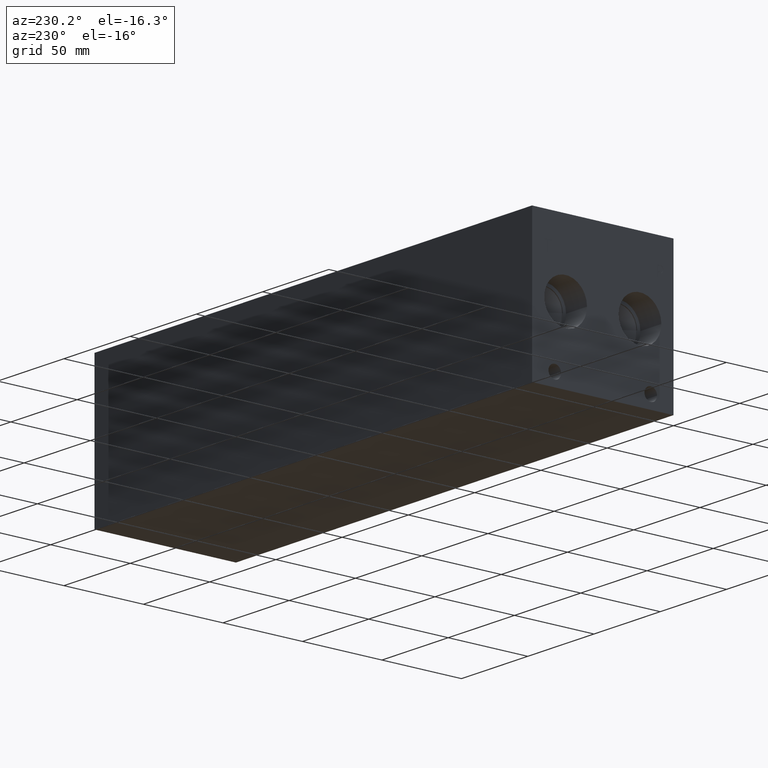
[diagram: clean part render]
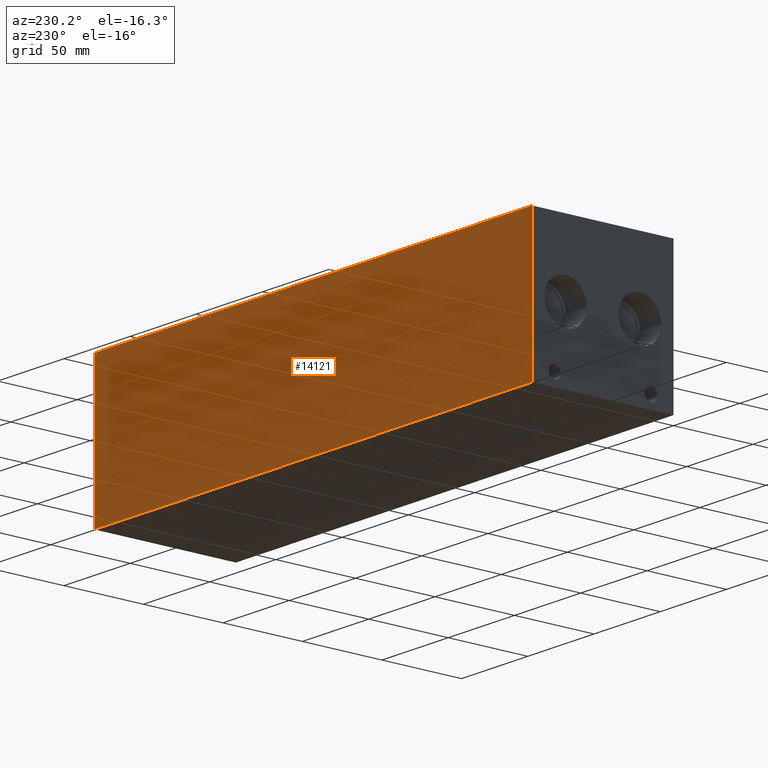
[diagram: same view with one face highlighted and labeled with its STEP entity id]
A machine part, auxiliary view. The second image highlights one B-rep face of the part: STEP entity #14121.
In plain terms, the highlighted planar face has unit normal (0, 1, 0).
Its self-contained STEP definition (entity closure, byte-faithful):
#1821=FACE_OUTER_BOUND('',#2653,.T.);
#2653=EDGE_LOOP('',(#12356,#12357,#12358,#12359));
#3685=LINE('',#22456,#4980);
#3721=LINE('',#22680,#5016);
#3983=LINE('',#24251,#5278);
#3984=LINE('',#24252,#5279);
#4980=VECTOR('',#16660,10.);
#5016=VECTOR('',#16732,10.);
#5278=VECTOR('',#17968,10.);
#5279=VECTOR('',#17969,10.);
#6166=VERTEX_POINT('',#22453);
#6167=VERTEX_POINT('',#22455);
#6208=VERTEX_POINT('',#22676);
#6209=VERTEX_POINT('',#22678);
#7933=EDGE_CURVE('',#6166,#6167,#3685,.T.);
#7993=EDGE_CURVE('',#6208,#6209,#3721,.T.);
#8568=EDGE_CURVE('',#6166,#6208,#3983,.T.);
#8569=EDGE_CURVE('',#6167,#6209,#3984,.T.);
#12356=ORIENTED_EDGE('',*,*,#8568,.T.);
#12357=ORIENTED_EDGE('',*,*,#7993,.T.);
#12358=ORIENTED_EDGE('',*,*,#8569,.F.);
#12359=ORIENTED_EDGE('',*,*,#7933,.F.);
#12862=PLANE('',#14982);
#14121=ADVANCED_FACE('',(#1821),#12862,.T.);
#14982=AXIS2_PLACEMENT_3D('',#24250,#17966,#17967);
#16660=DIRECTION('',(0.,0.,1.));
#16732=DIRECTION('',(0.,0.,1.));
#17966=DIRECTION('center_axis',(0.,1.,0.));
#17967=DIRECTION('ref_axis',(-1.,0.,0.));
#17968=DIRECTION('',(-1.,0.,0.));
#17969=DIRECTION('',(-1.,0.,0.));
#22453=CARTESIAN_POINT('',(330.2,88.9,0.));
#22455=CARTESIAN_POINT('',(330.2,88.9,88.9));
#22456=CARTESIAN_POINT('',(330.2,88.9,0.));
#22676=CARTESIAN_POINT('',(0.,88.9,0.));
#22678=CARTESIAN_POINT('',(0.,88.9,88.9));
#22680=CARTESIAN_POINT('',(0.,88.9,0.));
#24250=CARTESIAN_POINT('Origin',(330.2,88.9,0.));
#24251=CARTESIAN_POINT('',(330.2,88.9,0.));
#24252=CARTESIAN_POINT('',(330.2,88.9,88.9));